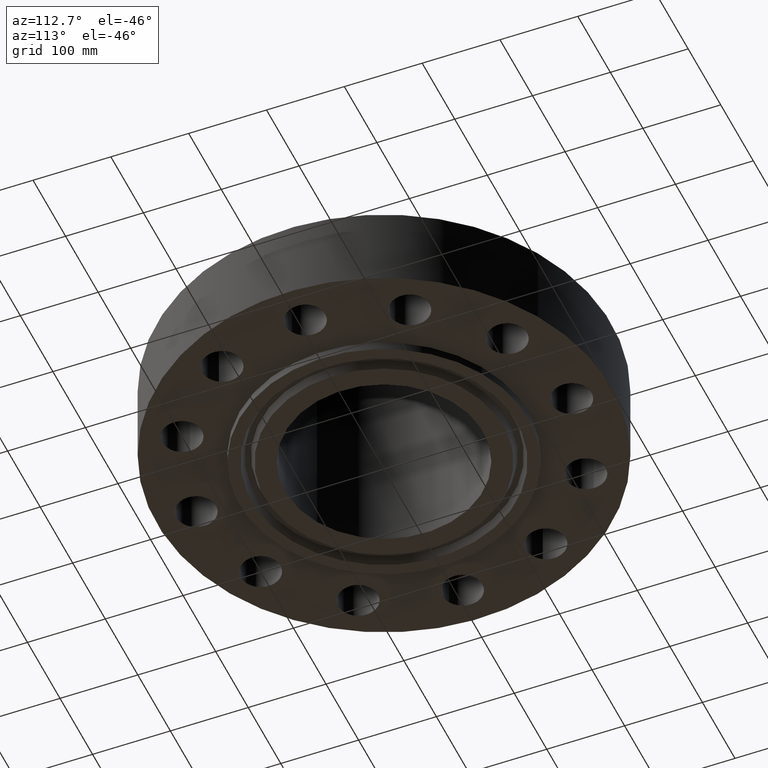
[diagram: clean part render]
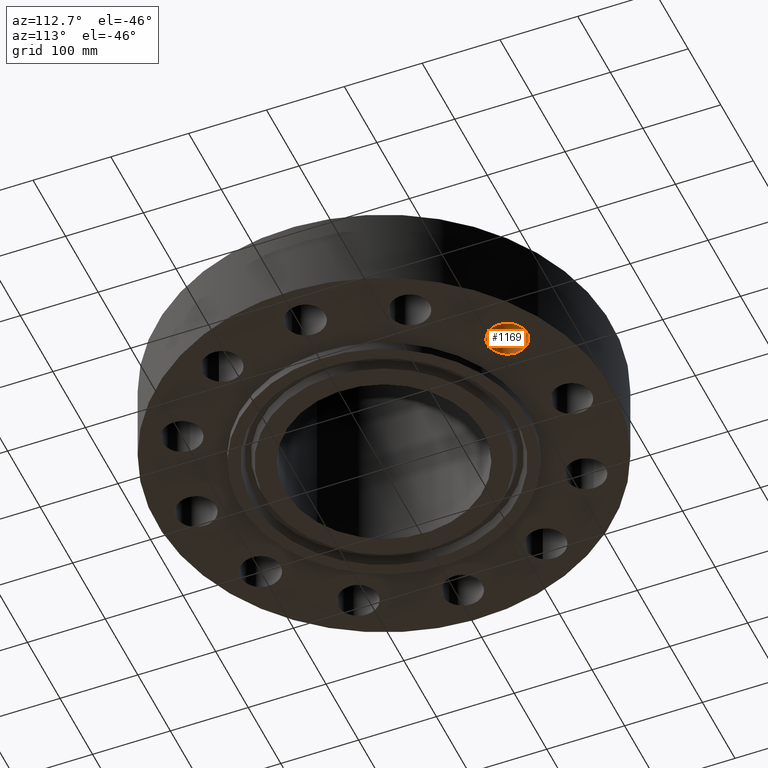
[diagram: same view with one face highlighted and labeled with its STEP entity id]
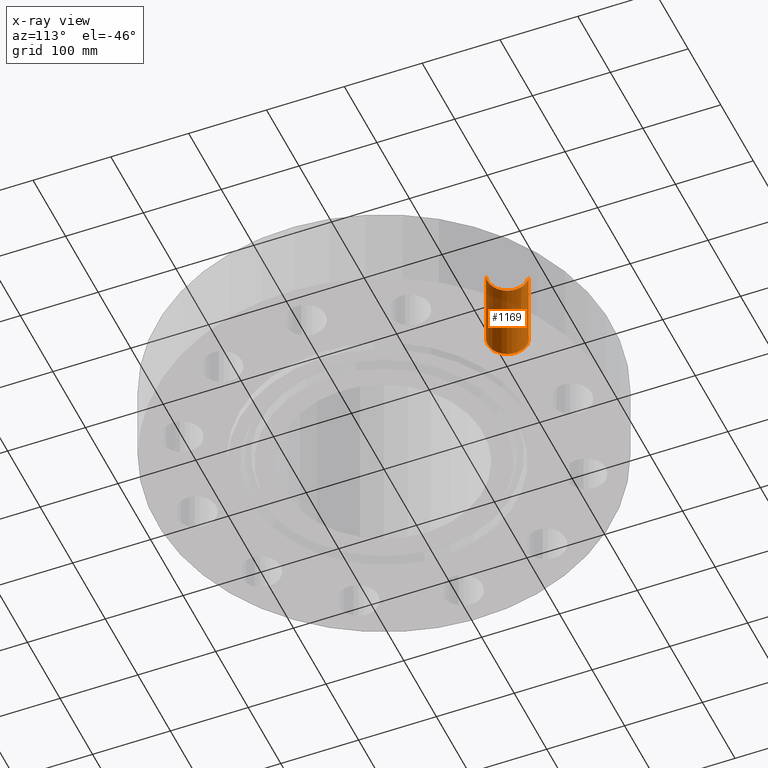
[diagram: x-ray of the same camera — body ghosted, the highlighted face saturated]
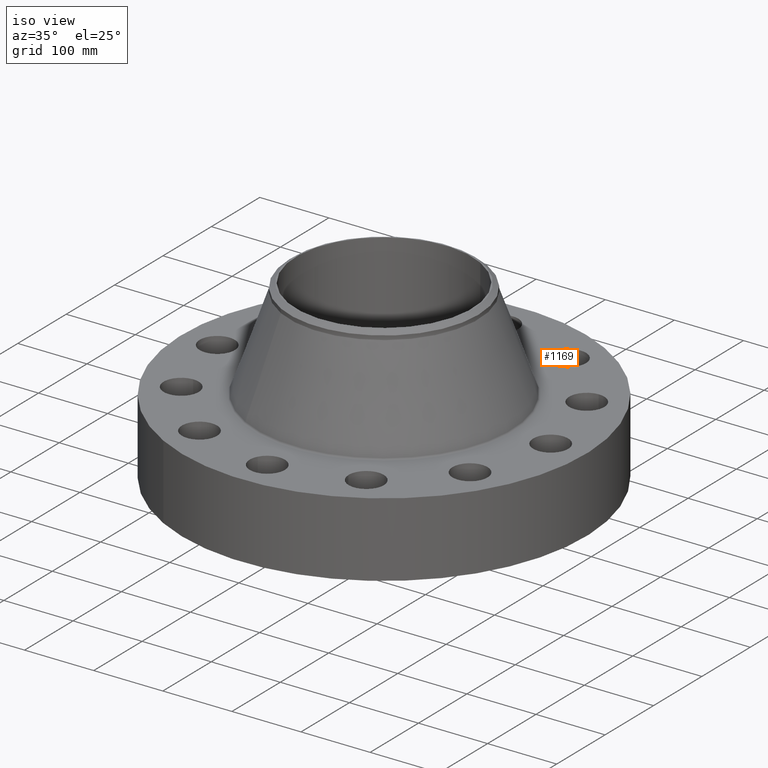
[diagram: same view with one face highlighted and labeled with its STEP entity id]
A machine part, auxiliary view. The second image highlights one B-rep face of the part: STEP entity #1169.
The next image is the same camera in x-ray: the body ghosted, the highlighted face saturated — about 28% of this face is hidden behind the body in this view.
A second angle (iso view) of the same face is appended — the face is thin or edge-on in the first view.
In plain terms, the highlighted cylindrical surface (edge-blend (fillet) strip) has radius 25.4 mm, axis along (0, -0, -1).
Its self-contained STEP definition (entity closure, byte-faithful):
#509=AXIS2_PLACEMENT_3D('Circle Axis2P3D',#507,#508,$) ;
#1130=AXIS2_PLACEMENT_3D('Cylinder Axis2P3D',#1127,#1128,#1129) ;
#1160=AXIS2_PLACEMENT_3D('Circle Axis2P3D',#1158,#1159,$) ;
#502=CARTESIAN_POINT('Vertex',(4.2297039768,9.08122731259,0.)) ;
#504=CARTESIAN_POINT('Vertex',(5.27029602323,7.37325535938,0.)) ;
#507=CARTESIAN_POINT('Axis2P3D Location',(4.75000000002,8.22724133599,0.)) ;
#1127=CARTESIAN_POINT('Axis2P3D Location',(4.75000000002,8.22724133599,4.24606299214)) ;
#1132=CARTESIAN_POINT('Line Origine',(4.2297039768,9.08122731259,2.12500000001)) ;
#1136=CARTESIAN_POINT('Vertex',(4.2297039768,9.08122731259,4.25000000002)) ;
#1139=CARTESIAN_POINT('Line Origine',(5.27029602323,7.37325535938,2.12500000001)) ;
#1143=CARTESIAN_POINT('Vertex',(5.27029602323,7.37325535938,4.25000000002)) ;
#1158=CARTESIAN_POINT('Axis2P3D Location',(4.75000000002,8.22724133599,4.25000000002)) ;
#508=DIRECTION('Axis2P3D Direction',(0.,0.,-0.0393700787402)) ;
#1128=DIRECTION('Axis2P3D Direction',(0.,-0.,-0.0393700787402)) ;
#1129=DIRECTION('Axis2P3D XDirection',(0.0204840954021,-0.0336214951417,0.)) ;
#1133=DIRECTION('Vector Direction',(0.,0.,-0.0393700787402)) ;
#1140=DIRECTION('Vector Direction',(0.,0.,-0.0393700787402)) ;
#1159=DIRECTION('Axis2P3D Direction',(0.,-0.,-0.0393700787402)) ;
#1134=VECTOR('Line Direction',#1133,0.0393700787402) ;
#1141=VECTOR('Line Direction',#1140,0.0393700787402) ;
#1164=ORIENTED_EDGE('',*,*,#1145,.F.) ;
#1165=ORIENTED_EDGE('',*,*,#511,.T.) ;
#1166=ORIENTED_EDGE('',*,*,#1138,.T.) ;
#1167=ORIENTED_EDGE('',*,*,#1162,.F.) ;
#1169=ADVANCED_FACE('PartBody',(#1168),#1131,.F.) ;
#510=CIRCLE('generated circle',#509,1.) ;
#1161=CIRCLE('generated circle',#1160,1.) ;
#1131=CYLINDRICAL_SURFACE('generated cylinder',#1130,1.) ;
#511=EDGE_CURVE('',#505,#503,#510,.T.) ;
#1138=EDGE_CURVE('',#503,#1137,#1135,.F.) ;
#1145=EDGE_CURVE('',#505,#1144,#1142,.F.) ;
#1162=EDGE_CURVE('',#1144,#1137,#1161,.T.) ;
#1163=EDGE_LOOP('',(#1164,#1165,#1166,#1167)) ;
#1168=FACE_OUTER_BOUND('',#1163,.T.) ;
#1135=LINE('Line',#1132,#1134) ;
#1142=LINE('Line',#1139,#1141) ;
#503=VERTEX_POINT('',#502) ;
#505=VERTEX_POINT('',#504) ;
#1137=VERTEX_POINT('',#1136) ;
#1144=VERTEX_POINT('',#1143) ;